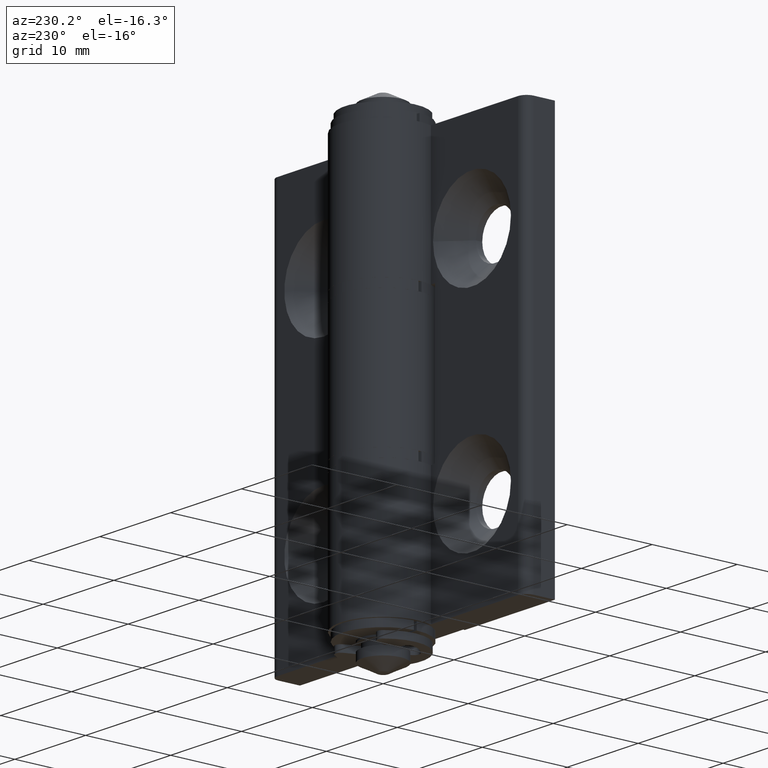
[diagram: clean part render]
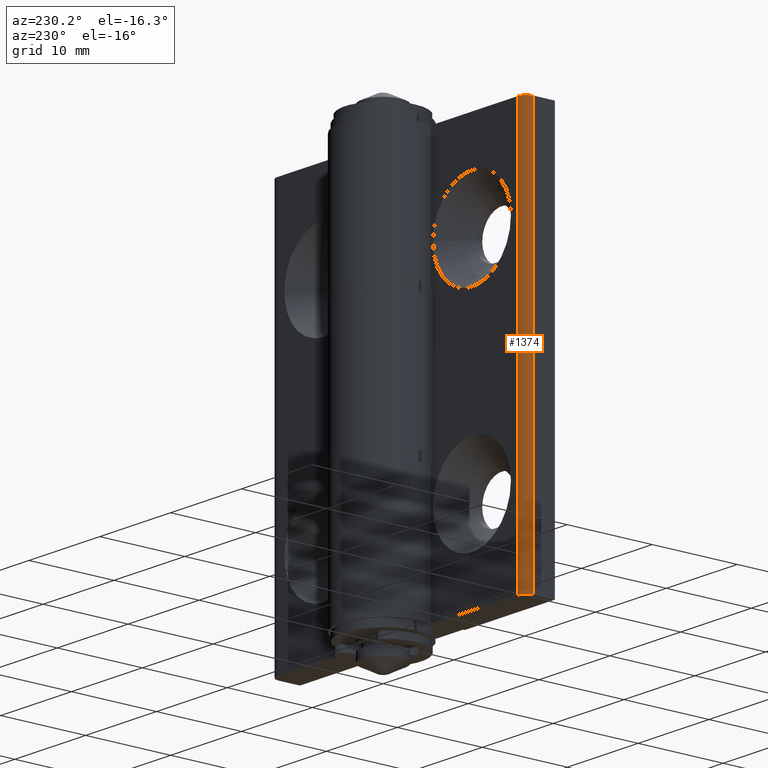
[diagram: same view with one face highlighted and labeled with its STEP entity id]
A machine part, auxiliary view. The second image highlights one B-rep face of the part: STEP entity #1374.
In plain terms, the highlighted cylindrical surface (edge-blend (fillet) strip) has radius 1 mm, axis along (0, 0, -1).
Its self-contained STEP definition (entity closure, byte-faithful):
#84=CYLINDRICAL_SURFACE('',#1473,1.);
#157=FACE_OUTER_BOUND('',#246,.T.);
#246=EDGE_LOOP('',(#987,#988,#989,#990));
#361=CIRCLE('',#1474,1.);
#362=CIRCLE('',#1475,1.);
#438=LINE('',#2122,#544);
#444=LINE('',#2145,#550);
#544=VECTOR('',#1659,47.);
#550=VECTOR('',#1683,47.);
#652=VERTEX_POINT('',#2119);
#653=VERTEX_POINT('',#2121);
#660=VERTEX_POINT('',#2142);
#661=VERTEX_POINT('',#2144);
#786=EDGE_CURVE('',#653,#652,#438,.T.);
#796=EDGE_CURVE('',#652,#660,#361,.T.);
#797=EDGE_CURVE('',#660,#661,#444,.T.);
#798=EDGE_CURVE('',#661,#653,#362,.T.);
#987=ORIENTED_EDGE('',*,*,#796,.T.);
#988=ORIENTED_EDGE('',*,*,#797,.T.);
#989=ORIENTED_EDGE('',*,*,#798,.T.);
#990=ORIENTED_EDGE('',*,*,#786,.T.);
#1374=ADVANCED_FACE('',(#157),#84,.T.);
#1473=AXIS2_PLACEMENT_3D('',#2141,#1679,#1680);
#1474=AXIS2_PLACEMENT_3D('',#2143,#1681,#1682);
#1475=AXIS2_PLACEMENT_3D('',#2146,#1684,#1685);
#1659=DIRECTION('',(0.,0.,1.));
#1679=DIRECTION('center_axis',(0.,0.,1.));
#1680=DIRECTION('ref_axis',(0.707106781186548,0.707106781186547,0.));
#1681=DIRECTION('center_axis',(0.,0.,-1.));
#1682=DIRECTION('ref_axis',(0.707106781186548,0.707106781186547,0.));
#1683=DIRECTION('',(0.,0.,-1.));
#1684=DIRECTION('center_axis',(0.,0.,1.));
#1685=DIRECTION('ref_axis',(0.707106781186548,0.707106781186547,0.));
#2119=CARTESIAN_POINT('',(17.,-1.7,23.5));
#2121=CARTESIAN_POINT('',(17.,-1.7,-23.5));
#2122=CARTESIAN_POINT('',(17.,-1.7,0.));
#2141=CARTESIAN_POINT('Origin',(17.,-2.7,0.));
#2142=CARTESIAN_POINT('',(18.,-2.7,23.5));
#2143=CARTESIAN_POINT('Origin',(17.,-2.7,23.5));
#2144=CARTESIAN_POINT('',(18.,-2.7,-23.5));
#2145=CARTESIAN_POINT('',(18.,-2.7,0.));
#2146=CARTESIAN_POINT('Origin',(17.,-2.7,-23.5));